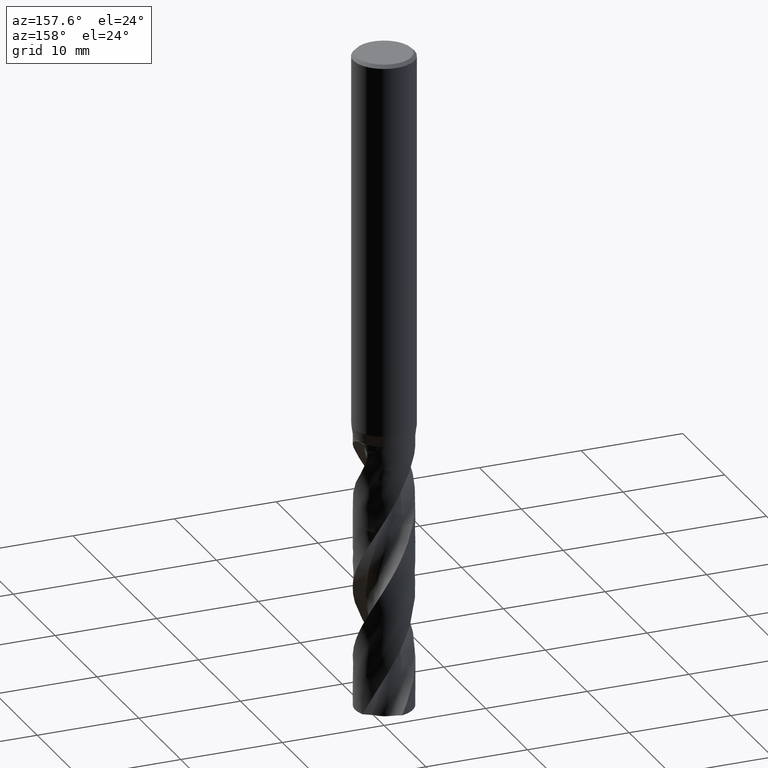
[diagram: clean part render]
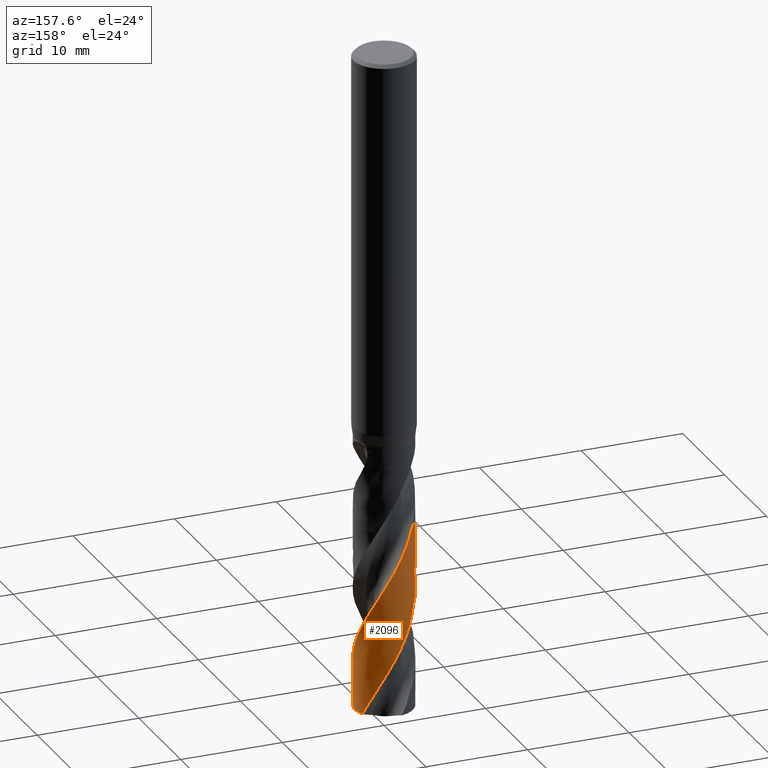
[diagram: same view with one face highlighted and labeled with its STEP entity id]
A machine part, auxiliary view. The second image highlights one B-rep face of the part: STEP entity #2096.
In plain terms, the highlighted face is a freeform B-spline surface patch.
Its self-contained STEP definition (entity closure, byte-faithful):
#1609 = VERTEX_POINT('', #1610);
#1610 = CARTESIAN_POINT('', (-2.85, 3.02487759389396E-15, -46.55));
#1706 = VERTEX_POINT('', #1707);
#1707 = CARTESIAN_POINT('', (-1.98792407617232, 2.04221885883332, -46.55));
#1768 = EDGE_CURVE('', #1609, #1706, #1769, .T.);
#1769 = CIRCLE('', #1770, 2.85);
#1770 = AXIS2_PLACEMENT_3D('', #1771, #1772, #1773);
#1771 = CARTESIAN_POINT('', (1.74534544707274E-31, 2.85036542501546E-15, -46.55));
#1772 = DIRECTION('', (3.74939945665464E-33, 6.12323399573677E-17, -1.));
#1773 = DIRECTION('', (-1., 6.12323399573677E-17, 0.));
#1785 = VERTEX_POINT('', #1786);
#1786 = CARTESIAN_POINT('', (-2.85, 3.32058950016794E-15, -51.3793419209501));
#1829 = EDGE_CURVE('', #1830, #1785, #1832, .T.);
#1830 = VERTEX_POINT('', #1831);
#1831 = CARTESIAN_POINT('', (2.60187672995793, 1.16307243201076, -64.9626848323413));
#1832 = B_SPLINE_CURVE_WITH_KNOTS('', 3, (#1833, #1834, #1835, #1836, #1837, #1838, #1839, #1840, #1841, #1842, #1843, #1844, #1845, #1846, #1847, #1848, #1849, #1850, #1851, #1852, #1853, #1854, #1855, #1856, #1857, #1858, #1859, #1860, #1861, #1862, #1863, #1864, #1865, #1866, #1867, #1868, #1869, #1870, #1871, #1872, #1873, #1874, #1875, #1876, #1877, #1878, #1879, #1880, #1881, #1882, #1883, #1884, #1885, #1886, #1887, #1888, #1889, #1890, #1891, #1892, #1893, #1894, #1895, #1896, #1897, #1898, #1899, #1900, #1901, #1902, #1903, #1904, #1905, #1906, #1907, #1908, #1909, #1910, #1911, #1912, #1913, #1914, #1915, #1916, #1917, #1918, #1919, #1920, #1921, #1922, #1923, #1924, #1925, #1926), .UNSPECIFIED., .F., .U., (4, 3, 3, 3, 3, 3, 3, 3, 3, 3, 3, 3, 3, 3, 3, 3, 3, 3, 3, 3, 3, 3, 3, 3, 3, 3, 3, 3, 3, 3, 3, 4), (0., 0.665746655650288, 1.33121362468558, 1.99640631396277, 2.66132826091899, 3.32598120180865, 3.99036507545251, 4.65447804100645, 5.31831642697367, 5.98187463308034, 6.42446808702659, 6.62135358816018, 6.81857089765819, 7.485337783896, 8.15178527987921, 8.59566320378589, 9.03945398279721, 9.48315915013269, 9.92678016454502, 10.3703182534629, 10.8137742204683, 11.2571485291879, 11.7004416253486, 12.14365368564, 12.5867844771484, 13.0298335567099, 13.4728003964192, 13.9156841491352, 14.3584835506832, 14.801197175172, 15.2438233904651, 15.6399709755186), .UNSPECIFIED.);
#1833 = CARTESIAN_POINT('', (2.60187672995793, 1.16307243201077, -64.9626848323413));
#1834 = CARTESIAN_POINT('', (2.55709700511516, 1.26324789902007, -64.7697958377869));
#1835 = CARTESIAN_POINT('', (2.50649890907344, 1.36088544842563, -64.5768355906901));
#1836 = CARTESIAN_POINT('', (2.45045675197703, 1.45525314179018, -64.3839612086568));
#1837 = CARTESIAN_POINT('', (2.39443813873335, 1.5495811903732, -64.1911678550184));
#1838 = CARTESIAN_POINT('', (2.33293423005256, 1.64071918317822, -63.9983035954809));
#1839 = CARTESIAN_POINT('', (2.26640140942975, 1.72798282726851, -63.8055250095685));
#1840 = CARTESIAN_POINT('', (2.19989601106347, 1.81521050465826, -63.6128258795365));
#1841 = CARTESIAN_POINT('', (2.12831141099925, 1.89863842523507, -63.4200557960287));
#1842 = CARTESIAN_POINT('', (2.05217936706017, 1.97763996860211, -63.2273714467394));
#1843 = CARTESIAN_POINT('', (1.97607830988117, 2.05660935728441, -63.0347655225572));
#1844 = CARTESIAN_POINT('', (1.89537150109657, 2.131220331214, -62.8420885299868));
#1845 = CARTESIAN_POINT('', (1.81065871981079, 2.20091231092317, -62.6494973829065));
#1846 = CARTESIAN_POINT('', (1.72598021059586, 2.27057609549543, -62.4569841520194));
#1847 = CARTESIAN_POINT('', (1.63723036769698, 2.3353813177489, -62.2643997191131));
#1848 = CARTESIAN_POINT('', (1.54506882699724, 2.39484077129178, -62.0719012498449));
#1849 = CARTESIAN_POINT('', (1.45294459547105, 2.45427615424019, -61.8794807085144));
#1850 = CARTESIAN_POINT('', (1.35733722140252, 2.50841798279903, -61.6869888387253));
#1851 = CARTESIAN_POINT('', (1.25895732034413, 2.55685871051804, -61.4945830319724));
#1852 = CARTESIAN_POINT('', (1.16061753451451, 2.60527968612455, -61.3022556802989));
#1853 = CARTESIAN_POINT('', (1.05942863066801, 2.64804303865706, -61.1098569157155));
#1854 = CARTESIAN_POINT('', (0.956142778754368, 2.68482606264096, -60.9175442627295));
#1855 = CARTESIAN_POINT('', (0.852899630699864, 2.72159387856833, -60.7253111220126));
#1856 = CARTESIAN_POINT('', (0.747478681137094, 2.75241571644323, -60.5330065474758));
#1857 = CARTESIAN_POINT('', (0.640663778182173, 2.77705778177667, -60.3407880639186));
#1858 = CARTESIAN_POINT('', (0.533893957562422, 2.80168944667142, -60.1486507081616));
#1859 = CARTESIAN_POINT('', (0.425645911751036, 2.8201662515249, -59.9564419763817));
#1860 = CARTESIAN_POINT('', (0.316724949790352, 2.83234625464125, -59.7643192329139));
#1861 = CARTESIAN_POINT('', (0.244074646745833, 2.84047031911477, -59.6361733252445));
#1862 = CARTESIAN_POINT('', (0.171093056342324, 2.84579916777759, -59.5080071718604));
#1863 = CARTESIAN_POINT('', (0.0980217646247251, 2.84831384044317, -59.379867781521));
#1864 = CARTESIAN_POINT('', (0.0655163632004074, 2.84943248009664, -59.3228656097604));
#1865 = CARTESIAN_POINT('', (0.0329894749352294, 2.84999468292579, -59.2658620517461));
#1866 = CARTESIAN_POINT('', (0.000462591686797684, 2.84999996245771, -59.2088611578924));
#1867 = CARTESIAN_POINT('', (-0.0321191086602425, 2.85000525088716, -59.1517642012345));
#1868 = CARTESIAN_POINT('', (-0.0647031158136843, 2.849451739771, -59.0946657753081));
#1869 = CARTESIAN_POINT('', (-0.0972680325479224, 2.84833967950529, -59.0375700731482));
#1870 = CARTESIAN_POINT('', (-0.207365914862362, 2.84457994379768, -58.8445366946704));
#1871 = CARTESIAN_POINT('', (-0.317303929060717, 2.83442403646317, -58.6514311857656));
#1872 = CARTESIAN_POINT('', (-0.426252596984822, 2.81794405969396, -58.4584126306148));
#1873 = CARTESIAN_POINT('', (-0.535149077040113, 2.801471977054, -58.265486533933));
#1874 = CARTESIAN_POINT('', (-0.643146771387171, 2.77866833578027, -58.0724882272714));
#1875 = CARTESIAN_POINT('', (-0.749431090196727, 2.74970053661244, -57.8795769475536));
#1876 = CARTESIAN_POINT('', (-0.820220256727275, 2.73040694389545, -57.7510911195544));
#1877 = CARTESIAN_POINT('', (-0.890282504273584, 2.70837258853102, -57.6225851248725));
#1878 = CARTESIAN_POINT('', (-0.959382458251651, 2.68367011735777, -57.4941057837597));
#1879 = CARTESIAN_POINT('', (-1.02846884609377, 2.65897249592844, -57.3656516665161));
#1880 = CARTESIAN_POINT('', (-1.09661908260281, 2.63159860096718, -57.2371773909318));
#1881 = CARTESIAN_POINT('', (-1.16360434155712, 2.60163889429518, -57.1087299200143));
#1882 = CARTESIAN_POINT('', (-1.23057667838563, 2.57168496714996, -56.9803072278974));
#1883 = CARTESIAN_POINT('', (-1.29640874733083, 2.53913539940159, -56.8518640729467));
#1884 = CARTESIAN_POINT('', (-1.36088023068152, 2.50409764141501, -56.7234479413584));
#1885 = CARTESIAN_POINT('', (-1.42533948639957, 2.46906652867391, -56.5950561651162));
#1886 = CARTESIAN_POINT('', (-1.48846181635542, 2.43153557565112, -56.4666440168678));
#1887 = CARTESIAN_POINT('', (-1.5500354563799, 2.39162916940841, -56.3382587049775));
#1888 = CARTESIAN_POINT('', (-1.61159758652461, 2.35173022281788, -56.2098973919852));
#1889 = CARTESIAN_POINT('', (-1.67163434836633, 2.30944194564212, -56.0815159546611));
#1890 = CARTESIAN_POINT('', (-1.72994357860935, 2.26490512269903, -55.953161159072));
#1891 = CARTESIAN_POINT('', (-1.78824201278855, 2.22037654583259, -55.8248301286151));
#1892 = CARTESIAN_POINT('', (-1.84483521576144, 2.17358373016457, -55.6964788490658));
#1893 = CARTESIAN_POINT('', (-1.89953298225189, 2.12468219960945, -55.568154456942));
#1894 = CARTESIAN_POINT('', (-1.95422067665814, 2.07578967381568, -55.4398536945597));
#1895 = CARTESIAN_POINT('', (-2.00703334258512, 2.02477160577293, -55.3115324568371));
#1896 = CARTESIAN_POINT('', (-2.05779377619368, 1.97179734624493, -55.1832382058623));
#1897 = CARTESIAN_POINT('', (-2.10854491204948, 1.91883278997463, -55.0549674544549));
#1898 = CARTESIAN_POINT('', (-2.15726294657553, 1.86389354797768, -54.9266764137536));
#1899 = CARTESIAN_POINT('', (-2.20378379143089, 1.80716269345804, -54.7984121209142));
#1900 = CARTESIAN_POINT('', (-2.25029613207731, 1.75044220958065, -54.6701712753347));
#1901 = CARTESIAN_POINT('', (-2.29462937216546, 1.69190967236287, -54.5419102897095));
#1902 = CARTESIAN_POINT('', (-2.33663382291245, 1.6317605147881, -54.4136760097407));
#1903 = CARTESIAN_POINT('', (-2.37863057158883, 1.57162238635551, -54.2854652432202));
#1904 = CARTESIAN_POINT('', (-2.41831483964968, 1.50984613382208, -54.1572341134943));
#1905 = CARTESIAN_POINT('', (-2.45555290879201, 1.44663745013155, -54.02902993823));
#1906 = CARTESIAN_POINT('', (-2.4927841113496, 1.38344042192672, -53.9008494034189));
#1907 = CARTESIAN_POINT('', (-2.52758341816035, 1.3187887440939, -53.7726484269787));
#1908 = CARTESIAN_POINT('', (-2.55983343891936, 1.25289774722054, -53.6444743694852));
#1909 = CARTESIAN_POINT('', (-2.59207747335074, 1.18701898119495, -53.5163241039734));
#1910 = CARTESIAN_POINT('', (-2.62178495612779, 1.11987722154843, -53.3881536197117));
#1911 = CARTESIAN_POINT('', (-2.64885514368494, 1.05169692771912, -53.2600098231424));
#1912 = CARTESIAN_POINT('', (-2.67592025370515, 0.983529422421837, -53.1318900624191));
#1913 = CARTESIAN_POINT('', (-2.70035913901592, 0.914298386662036, -53.0037501081213));
#1914 = CARTESIAN_POINT('', (-2.72208869716465, 0.844235230707935, -52.8756369451479));
#1915 = CARTESIAN_POINT('', (-2.74381411672487, 0.774185418907915, -52.747548182471));
#1916 = CARTESIAN_POINT('', (-2.76283917122622, 0.703278293964709, -52.6194389828885));
#1917 = CARTESIAN_POINT('', (-2.77909906586415, 0.631750252958461, -52.4913567581712));
#1918 = CARTESIAN_POINT('', (-2.79535581071023, 0.560236068034658, -52.3632993449521));
#1919 = CARTESIAN_POINT('', (-2.80885433088978, 0.488075365132126, -52.2352215525609));
#1920 = CARTESIAN_POINT('', (-2.81954821613301, 0.415509153811633, -52.1071705967985));
#1921 = CARTESIAN_POINT('', (-2.83023998997995, 0.342957269933998, -51.9791449233641));
#1922 = CARTESIAN_POINT('', (-2.83813216903177, 0.269973228552009, -51.8510990722532));
#1923 = CARTESIAN_POINT('', (-2.84319699740497, 0.196801509007373, -51.7230798943424));
#1924 = CARTESIAN_POINT('', (-2.84772998587115, 0.131313295724247, -51.6085035623998));
#1925 = CARTESIAN_POINT('', (-2.85, 0.065654151664167, -51.4939129568803));
#1926 = CARTESIAN_POINT('', (-2.85, 3.46793257540872E-15, -51.3793419209501));
#2083 = EDGE_CURVE('', #1609, #1785, #2084, .T.);
#2084 = LINE('', #2085, #2086);
#2085 = CARTESIAN_POINT('', (-2.85, 3.02487759389396E-15, -46.55));
#2086 = VECTOR('', #2087, 4.82934192095006);
#2087 = DIRECTION('', (4.44089209850063E-16, 2.95711906273981E-16, -4.82934192095006));
#2096 = ADVANCED_FACE('', (#2097), #2262, .T.);
#2097 = FACE_OUTER_BOUND('', #2098, .T.);
#2098 = EDGE_LOOP('', (#2099, #2100, #2121, #2241, #2253, #2260, #2261));
#2099 = ORIENTED_EDGE('', *, *, #1768, .T.);
#2100 = ORIENTED_EDGE('', *, *, #2101, .T.);
#2101 = EDGE_CURVE('', #1706, #2102, #2104, .T.);
#2102 = VERTEX_POINT('', #2103);
#2103 = CARTESIAN_POINT('', (-1.3257214538499, 2.52288775549015, -47.9747426173609));
#2104 = B_SPLINE_CURVE_WITH_KNOTS('', 3, (#2105, #2106, #2107, #2108, #2109, #2110, #2111, #2112, #2113, #2114, #2115, #2116, #2117, #2118, #2119, #2120), .UNSPECIFIED., .F., .U., (4, 3, 3, 3, 3, 4), (3.44372196559337, 3.59760993028609, 4.0408805755316, 4.48407031043517, 4.92717567890113, 5.08804353266622), .UNSPECIFIED.);
#2105 = CARTESIAN_POINT('', (-1.98792407617232, 2.04221885883332, -46.55));
#2106 = CARTESIAN_POINT('', (-1.96956200638207, 2.06009275147049, -46.5944368851698));
#2107 = CARTESIAN_POINT('', (-1.95095737974565, 2.07772032951868, -46.6388815479667));
#2108 = CARTESIAN_POINT('', (-1.93212246154839, 2.09509016359206, -46.6833204175445));
#2109 = CARTESIAN_POINT('', (-1.87786892483344, 2.14512356011456, -46.8113255310766));
#2110 = CARTESIAN_POINT('', (-1.8216701698186, 2.19304860180755, -46.9393623178903));
#2111 = CARTESIAN_POINT('', (-1.76371032108836, 2.23871076811775, -47.0673768428751));
#2112 = CARTESIAN_POINT('', (-1.70576105178907, 2.28436459969718, -47.1953680013249));
#2113 = CARTESIAN_POINT('', (-1.64603081183688, 2.32777211206765, -47.3233860555629));
#2114 = CARTESIAN_POINT('', (-1.58472553369249, 2.36878555020565, -47.4513848350699));
#2115 = CARTESIAN_POINT('', (-1.523431925737, 2.40979118094785, -47.5793592484868));
#2116 = CARTESIAN_POINT('', (-1.46054098789432, 2.44841905293377, -47.7073624470572));
#2117 = CARTESIAN_POINT('', (-1.39626714364824, 2.48453980921385, -47.8353467528518));
#2118 = CARTESIAN_POINT('', (-1.37293274936434, 2.4976533234086, -47.8818110073024));
#2119 = CARTESIAN_POINT('', (-1.34941402656523, 2.51043783500627, -47.9282770749575));
#2120 = CARTESIAN_POINT('', (-1.32572145384989, 2.52288775549016, -47.974742617361));
#2121 = ORIENTED_EDGE('', *, *, #2122, .T.);
#2122 = EDGE_CURVE('', #2102, #2123, #2125, .T.);
#2123 = VERTEX_POINT('', #2124);
#2124 = CARTESIAN_POINT('', (1.16251258702734, -2.60212691562172, -63.955245183903));
#2125 = B_SPLINE_CURVE_WITH_KNOTS('', 3, (#2126, #2127, #2128, #2129, #2130, #2131, #2132, #2133, #2134, #2135, #2136, #2137, #2138, #2139, #2140, #2141, #2142, #2143, #2144, #2145, #2146, #2147, #2148, #2149, #2150, #2151, #2152, #2153, #2154, #2155, #2156, #2157, #2158, #2159, #2160, #2161, #2162, #2163, #2164, #2165, #2166, #2167, #2168, #2169, #2170, #2171, #2172, #2173, #2174, #2175, #2176, #2177, #2178, #2179, #2180, #2181, #2182, #2183, #2184, #2185, #2186, #2187, #2188, #2189, #2190, #2191, #2192, #2193, #2194, #2195, #2196, #2197, #2198, #2199, #2200, #2201, #2202, #2203, #2204, #2205, #2206, #2207, #2208, #2209, #2210, #2211, #2212, #2213, #2214, #2215, #2216, #2217, #2218, #2219, #2220, #2221, #2222, #2223, #2224, #2225, #2226, #2227, #2228, #2229, #2230, #2231, #2232, #2233, #2234, #2235, #2236, #2237, #2238, #2239, #2240), .UNSPECIFIED., .F., .U., (4, 3, 3, 3, 3, 3, 3, 3, 3, 3, 3, 3, 3, 3, 3, 3, 3, 3, 3, 3, 3, 3, 3, 3, 3, 3, 3, 3, 3, 3, 3, 3, 3, 3, 3, 3, 3, 3, 4), (0., 0.664149823681379, 1.32801982652279, 1.99160629590015, 2.65490285047654, 2.74244776611175, 2.80083004414713, 3.24503055669159, 3.68913277382668, 4.13313973877544, 4.57705442447308, 5.02087942055315, 5.46461673245905, 5.90826799178523, 6.35183484628844, 6.79531856225105, 7.23871991735844, 7.68203955537223, 8.12527804280047, 8.56843556922399, 9.01151191570519, 9.4545068276929, 9.89741985375067, 10.3402501448994, 10.7829965078807, 11.2256576674572, 11.6682320398235, 11.755777496289, 11.7946985211444, 12.4615500404735, 13.1280756283179, 13.7942914104175, 14.4602104633401, 15.1258432256063, 15.7911978055205, 16.4562802062094, 17.1210944841478, 17.7856428527198, 18.4054194363403), .UNSPECIFIED.);
#2126 = CARTESIAN_POINT('', (-1.3257214538499, 2.52288775549015, -47.9747426173609));
#2127 = CARTESIAN_POINT('', (-1.22790565272389, 2.5742877853948, -48.1665775991317));
#2128 = CARTESIAN_POINT('', (-1.12707407799438, 2.62000075766548, -48.3585058475925));
#2129 = CARTESIAN_POINT('', (-1.02399642061479, 2.65968632183725, -48.5503667524184));
#2130 = CARTESIAN_POINT('', (-0.920962192105677, 2.69935516561326, -48.7421468220508));
#2131 = CARTESIAN_POINT('', (-0.815597421323754, 2.73303502701113, -48.9340204839772));
#2132 = CARTESIAN_POINT('', (-0.708702711058307, 2.76047830408769, -49.1258267716211));
#2133 = CARTESIAN_POINT('', (-0.601853654651839, 2.78790986036442, -49.3175511403639));
#2134 = CARTESIAN_POINT('', (-0.49338716544914, 2.80913301800649, -49.5093689509041));
#2135 = CARTESIAN_POINT('', (-0.384124517471755, 2.82399510535655, -49.7011194054566));
#2136 = CARTESIAN_POINT('', (-0.27490960533635, 2.83885069959789, -49.8927860860061));
#2137 = CARTESIAN_POINT('', (-0.164809378736544, 2.84736306931233, -50.0845461778986));
#2138 = CARTESIAN_POINT('', (-0.0546544162651941, 2.84947589826318, -50.2762389590424));
#2139 = CARTESIAN_POINT('', (-0.0401156600635846, 2.84975475909997, -50.3015394498068));
#2140 = CARTESIAN_POINT('', (-0.025575055908755, 2.84992234045737, -50.3268403498879));
#2141 = CARTESIAN_POINT('', (-0.0110345279514014, 2.84997863837484, -50.352141296618));
#2142 = CARTESIAN_POINT('', (-0.00133768673763242, 2.85001618253885, -50.3690140858125));
#2143 = CARTESIAN_POINT('', (0.00835919902465749, 2.8500042363085, -50.3858870320954));
#2144 = CARTESIAN_POINT('', (0.0180555597348696, 2.8499428058757, -50.402760027371));
#2145 = CARTESIAN_POINT('', (0.0918301458289949, 2.84947541353246, -50.531137908498));
#2146 = CARTESIAN_POINT('', (0.165589668292828, 2.84614124195886, -50.6595459031702));
#2147 = CARTESIAN_POINT('', (0.239085411362277, 2.83995390210376, -50.7879354703002));
#2148 = CARTESIAN_POINT('', (0.312564890843668, 2.8337679314211, -50.9162966266006));
#2149 = CARTESIAN_POINT('', (0.385807489390014, 2.82472778108847, -51.0446876699614));
#2150 = CARTESIAN_POINT('', (0.458565747076831, 2.81286641268444, -51.1730606829466));
#2151 = CARTESIAN_POINT('', (0.531308399385311, 2.80100758833723, -51.3014061621576));
#2152 = CARTESIAN_POINT('', (0.603594601783382, 2.78632422589204, -51.4297811399293));
#2153 = CARTESIAN_POINT('', (0.675179725942931, 2.76886842187848, -51.5581382671914));
#2154 = CARTESIAN_POINT('', (0.746749972359177, 2.75141624575513, -51.6864687176206));
#2155 = CARTESIAN_POINT('', (0.817646357023892, 2.7311862519342, -51.8148289346787));
#2156 = CARTESIAN_POINT('', (0.887630535171113, 2.70824888683296, -51.9431709590595));
#2157 = CARTESIAN_POINT('', (0.957600573542436, 2.68531615605351, -52.0714870529013));
#2158 = CARTESIAN_POINT('', (1.02668403252668, 2.65966889053417, -52.1998331116521));
#2159 = CARTESIAN_POINT('', (1.09464964193129, 2.63139547795837, -52.3281609201313));
#2160 = CARTESIAN_POINT('', (1.1626018237273, 2.60312765121225, -52.4564633755592));
#2161 = CARTESIAN_POINT('', (1.22946148330533, 2.57222432974698, -52.5847954057061));
#2162 = CARTESIAN_POINT('', (1.29500398151093, 2.53879197412291, -52.7131096591427));
#2163 = CARTESIAN_POINT('', (1.36053376926621, 2.50536610193029, -52.8413990290002));
#2164 = CARTESIAN_POINT('', (1.42477181993244, 2.46939946878393, -52.9697177658412));
#2165 = CARTESIAN_POINT('', (1.48750254206165, 2.43101546423715, -53.0980186977537));
#2166 = CARTESIAN_POINT('', (1.55022132964681, 2.39263876226202, -53.2262952203645));
#2167 = CARTESIAN_POINT('', (1.61145649225448, 2.35183150405342, -53.3546014777222));
#2168 = CARTESIAN_POINT('', (1.67100409770966, 2.30873240230165, -53.4828895673351));
#2169 = CARTESIAN_POINT('', (1.73054054204907, 2.26564137869275, -53.6111536116784));
#2170 = CARTESIAN_POINT('', (1.78841134824221, 2.22024396262763, -53.7394473889838));
#2171 = CARTESIAN_POINT('', (1.84442403887718, 2.1726941719469, -53.8677232069917));
#2172 = CARTESIAN_POINT('', (1.90042632720663, 2.12515321189801, -53.9959752024653));
#2173 = CARTESIAN_POINT('', (1.9545919919067, 2.07544297620208, -54.1242564413982));
#2174 = CARTESIAN_POINT('', (2.00674023426012, 2.02373259898675, -54.2525201199325));
#2175 = CARTESIAN_POINT('', (2.05887886590136, 1.97203175178681, -54.3807601599846));
#2176 = CARTESIAN_POINT('', (2.10902050277343, 1.9183120136456, -54.5090295175883));
#2177 = CARTESIAN_POINT('', (2.15699863817818, 1.86275518383321, -54.6372810656002));
#2178 = CARTESIAN_POINT('', (2.20496799108504, 1.80720852381454, -54.7655091368985));
#2179 = CARTESIAN_POINT('', (2.25079194903364, 1.74980545183872, -54.8937668883646));
#2180 = CARTESIAN_POINT('', (2.29431954858404, 1.69073883523894, -55.0220065523038));
#2181 = CARTESIAN_POINT('', (2.33783919747516, 1.63168300762244, -55.1502227922572));
#2182 = CARTESIAN_POINT('', (2.3790788461009, 1.57094314626906, -55.2784684784886));
#2183 = CARTESIAN_POINT('', (2.4179025052309, 1.50872379022741, -55.4066965176547));
#2184 = CARTESIAN_POINT('', (2.45671905243744, 1.44651583185686, -55.5349010673296));
#2185 = CARTESIAN_POINT('', (2.49313506107849, 1.38280553756523, -55.663134623128));
#2186 = CARTESIAN_POINT('', (2.52703035466206, 1.31780787166283, -55.791350743328));
#2187 = CARTESIAN_POINT('', (2.56091941851552, 1.25282215190029, -55.9195432982555));
#2188 = CARTESIAN_POINT('', (2.59230130421474, 1.18652543815809, -56.0477651689486));
#2189 = CARTESIAN_POINT('', (2.62107348030344, 1.11913976376948, -56.1759692107378));
#2190 = CARTESIAN_POINT('', (2.64984033796447, 1.05176654536731, -56.3041495544959));
#2191 = CARTESIAN_POINT('', (2.67600864256418, 0.983280956920073, -56.4323594574173));
#2192 = CARTESIAN_POINT('', (2.699493679113, 0.91391130665342, -56.5605514535157));
#2193 = CARTESIAN_POINT('', (2.72297432872297, 0.844554614442566, -56.6887195037094));
#2194 = CARTESIAN_POINT('', (2.74378112637888, 0.774289228115101, -56.8169166795923));
#2195 = CARTESIAN_POINT('', (2.76184686669633, 0.703350470903131, -56.9450964849557));
#2196 = CARTESIAN_POINT('', (2.7799091830735, 0.632425158480309, -57.0732519968225));
#2197 = CARTESIAN_POINT('', (2.79523826807371, 0.560800077028801, -57.2014364032638));
#2198 = CARTESIAN_POINT('', (2.80778520701327, 0.488714877282711, -57.3296034065752));
#2199 = CARTESIAN_POINT('', (2.82032973138322, 0.416643549823251, -57.4577457450537));
#2200 = CARTESIAN_POINT('', (2.83009777292201, 0.344086165911522, -57.5859174051958));
#2201 = CARTESIAN_POINT('', (2.83705926533686, 0.271283477134749, -57.7140712438992));
#2202 = CARTESIAN_POINT('', (2.84401939289624, 0.198495061899076, -57.8421999570321));
#2203 = CARTESIAN_POINT('', (2.8481765055992, 0.125435959936546, -57.9703579950544));
#2204 = CARTESIAN_POINT('', (2.84951919451414, 0.0523484488359543, -58.0984984523849));
#2205 = CARTESIAN_POINT('', (2.84978479126192, 0.0378910380125088, -58.123845864095));
#2206 = CARTESIAN_POINT('', (2.84994035250161, 0.0234318725467669, -58.1491936668168));
#2207 = CARTESIAN_POINT('', (2.84998587505304, 0.00897284782978843, -58.1745415085727));
#2208 = CARTESIAN_POINT('', (2.85000611350317, 0.00254464375028221, -58.185810671118));
#2209 = CARTESIAN_POINT('', (2.85000460318756, -0.00388356168687004, -58.1970798929324));
#2210 = CARTESIAN_POINT('', (2.84998134570503, -0.0103116018818975, -58.2083491431335));
#2211 = CARTESIAN_POINT('', (2.84958286473949, -0.120446121368287, -58.4014303028984));
#2212 = CARTESIAN_POINT('', (2.84278968030257, -0.230578483892782, -58.5946046197821));
#2213 = CARTESIAN_POINT('', (2.82966080920863, -0.339881898354103, -58.7877121073548));
#2214 = CARTESIAN_POINT('', (2.81653835500408, -0.449131889492353, -58.9807252113828));
#2215 = CARTESIAN_POINT('', (2.7970759194243, -0.557641359450123, -59.1738312091954));
#2216 = CARTESIAN_POINT('', (2.77142732663102, -0.664598053866253, -59.366870668638));
#2217 = CARTESIAN_POINT('', (2.74579065548267, -0.771505034064389, -59.5598204019926));
#2218 = CARTESIAN_POINT('', (2.71395301809455, -0.876946508539172, -59.7528626625233));
#2219 = CARTESIAN_POINT('', (2.67616052164807, -0.980135124548737, -59.9458387689786));
#2220 = CARTESIAN_POINT('', (2.63838485779048, -1.08327778086486, -60.1387289248414));
#2221 = CARTESIAN_POINT('', (2.59462918946395, -1.18425276046481, -60.331711174695));
#2222 = CARTESIAN_POINT('', (2.54522825311058, -1.2823077398067, -60.5246277086527));
#2223 = CARTESIAN_POINT('', (2.49584855511409, -1.38032056353783, -60.7174613043));
#2224 = CARTESIAN_POINT('', (2.44078838505747, -1.47549542787848, -60.9103865379523));
#2225 = CARTESIAN_POINT('', (2.38046630180795, -1.56712481505364, -61.1032465013418));
#2226 = CARTESIAN_POINT('', (2.32016942846387, -1.65871590832277, -61.2960258643743));
#2227 = CARTESIAN_POINT('', (2.25456583398425, -1.74683925574394, -61.4888964369755));
#2228 = CARTESIAN_POINT('', (2.18415192472679, -1.83084143762158, -61.6817021395245));
#2229 = CARTESIAN_POINT('', (2.11376681996523, -1.914809256395, -61.8744289702834));
#2230 = CARTESIAN_POINT('', (2.03851769983054, -1.99472807933551, -62.0672466672183));
#2231 = CARTESIAN_POINT('', (1.95897167231428, -2.07000724324099, -62.2599997887087));
#2232 = CARTESIAN_POINT('', (1.87945771315478, -2.1452560589423, -62.4526752032909));
#2233 = CARTESIAN_POINT('', (1.79558529403787, -2.21593054973405, -62.6454412881579));
#2234 = CARTESIAN_POINT('', (1.70798393192081, -2.28151065925634, -62.8381429226615));
#2235 = CARTESIAN_POINT('', (1.62041760819488, -2.34706453834715, -63.0307674812489));
#2236 = CARTESIAN_POINT('', (1.52905435579828, -2.4075813344297, -63.2234827248099));
#2237 = CARTESIAN_POINT('', (1.43457673173218, -2.46261844400886, -63.416133413378));
#2238 = CARTESIAN_POINT('', (1.34646423030794, -2.51394760733315, -63.595804888382));
#2239 = CARTESIAN_POINT('', (1.25557995740061, -2.56054862485852, -63.7755508736037));
#2240 = CARTESIAN_POINT('', (1.16251258702734, -2.60212691562172, -63.955245183903));
#2241 = ORIENTED_EDGE('', *, *, #2242, .T.);
#2242 = EDGE_CURVE('', #2123, #2243, #2245, .T.);
#2243 = VERTEX_POINT('', #2244);
#2244 = CARTESIAN_POINT('', (0.621152130627905, -2.78148701787666, -64.9626848323413));
#2245 = B_SPLINE_CURVE_WITH_KNOTS('', 3, (#2246, #2247, #2248, #2249, #2250, #2251, #2252), .UNSPECIFIED., .F., .U., (4, 3, 4), (0., 0.664037174440542, 1.15800526461268), .UNSPECIFIED.);
#2246 = CARTESIAN_POINT('', (1.16251258702727, -2.60212691562175, -63.9552451839032));
#2247 = CARTESIAN_POINT('', (1.06279892360641, -2.64667446944376, -64.1477721447915));
#2248 = CARTESIAN_POINT('', (0.960498431093776, -2.68549102381541, -64.3403873660212));
#2249 = CARTESIAN_POINT('', (0.856368203219401, -2.71829606564751, -64.532935164675));
#2250 = CARTESIAN_POINT('', (0.778907163729209, -2.74269928354789, -64.6761688148815));
#2251 = CARTESIAN_POINT('', (0.700394839451789, -2.76379080822106, -64.8194401273909));
#2252 = CARTESIAN_POINT('', (0.621152130627904, -2.78148701787666, -64.9626848323413));
#2253 = ORIENTED_EDGE('', *, *, #2254, .F.);
#2254 = EDGE_CURVE('', #1830, #2243, #2255, .T.);
#2255 = CIRCLE('', #2256, 2.84999999999999);
#2256 = AXIS2_PLACEMENT_3D('', #2257, #2258, #2259);
#2257 = CARTESIAN_POINT('', (2.43571055213207E-31, 3.97781720219726E-15, -64.9626848323413));
#2258 = DIRECTION('', (3.74939945665464E-33, 6.12323399573677E-17, -1.));
#2259 = DIRECTION('', (-1., 6.12323399573677E-17, 0.));
#2260 = ORIENTED_EDGE('', *, *, #1829, .T.);
#2261 = ORIENTED_EDGE('', *, *, #2083, .F.);
#2262 = (
   BOUNDED_SURFACE ()
   B_SPLINE_SURFACE (2, 1, ((#2263, #2264), (#2265, #2266), (#2267, #2268), (#2269, #2270), (#2271, #2272), (#2273, #2274), (#2275, #2276)), .UNSPECIFIED., .F., .F., .U.)
   B_SPLINE_SURFACE_WITH_KNOTS ((3, 2, 2, 3), (2, 2), (0., 4.47676953136546, 8.95353906273091, 12.7624990353167), (0.317104919378964, 1.), .UNSPECIFIED.)
   GEOMETRIC_REPRESENTATION_ITEM ()
   RATIONAL_B_SPLINE_SURFACE (((1., 1.), (0.707106781186548, 0.707106781186548), (1., 1.), (0.707106781186548, 0.707106781186548), (1., 1.), (0.750798306929599, 0.750798306929599), (0.925652070525182, 0.925652070525182)))
   REPRESENTATION_ITEM ('')
   SURFACE ()
);
#2263 = CARTESIAN_POINT('', (-2.85, 3.02487759389396E-15, -46.55));
#2264 = CARTESIAN_POINT('', (-2.85, 4.15232937107575E-15, -64.9626848323413));
#2265 = CARTESIAN_POINT('', (-2.85, 2.85, -46.55));
#2266 = CARTESIAN_POINT('', (-2.85, 2.85, -64.9626848323413));
#2267 = CARTESIAN_POINT('', (1.97215226305253E-31, 2.85, -46.55));
#2268 = CARTESIAN_POINT('', (2.46519032881566E-31, 2.85, -64.9626848323413));
#2269 = CARTESIAN_POINT('', (2.85, 2.85, -46.55));
#2270 = CARTESIAN_POINT('', (2.85, 2.85, -64.9626848323413));
#2271 = CARTESIAN_POINT('', (2.85, 3.02487759389396E-15, -46.55));
#2272 = CARTESIAN_POINT('', (2.85, 4.15232937107575E-15, -64.9626848323413));
#2273 = CARTESIAN_POINT('', (2.85, -2.28374836441251, -46.55));
#2274 = CARTESIAN_POINT('', (2.85, -2.28374836441251, -64.9626848323413));
#2275 = CARTESIAN_POINT('', (0.621152130627901, -2.78148701787666, -46.55));
#2276 = CARTESIAN_POINT('', (0.621152130627901, -2.78148701787666, -64.9626848323413));